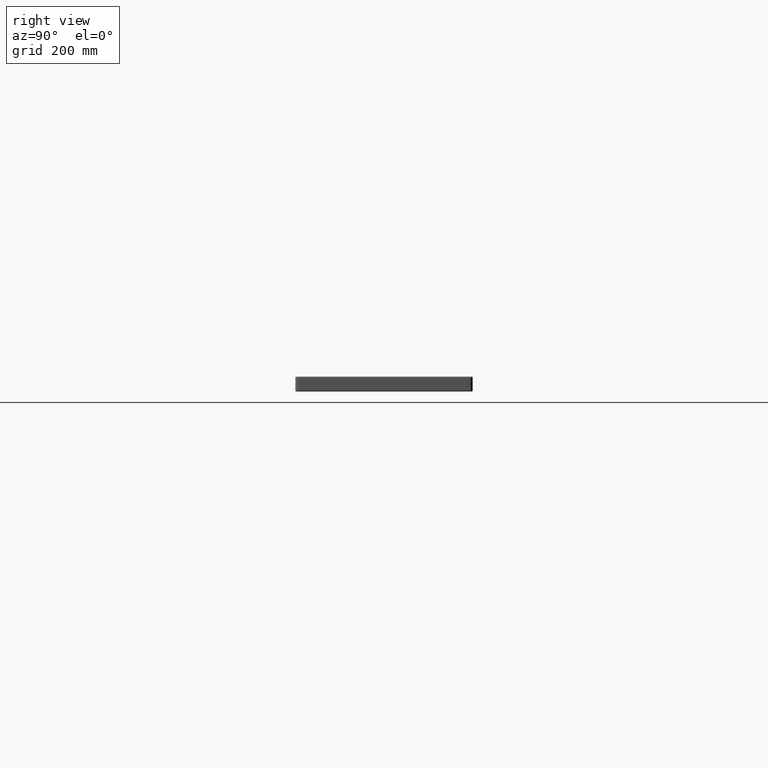
[diagram: clean part render]
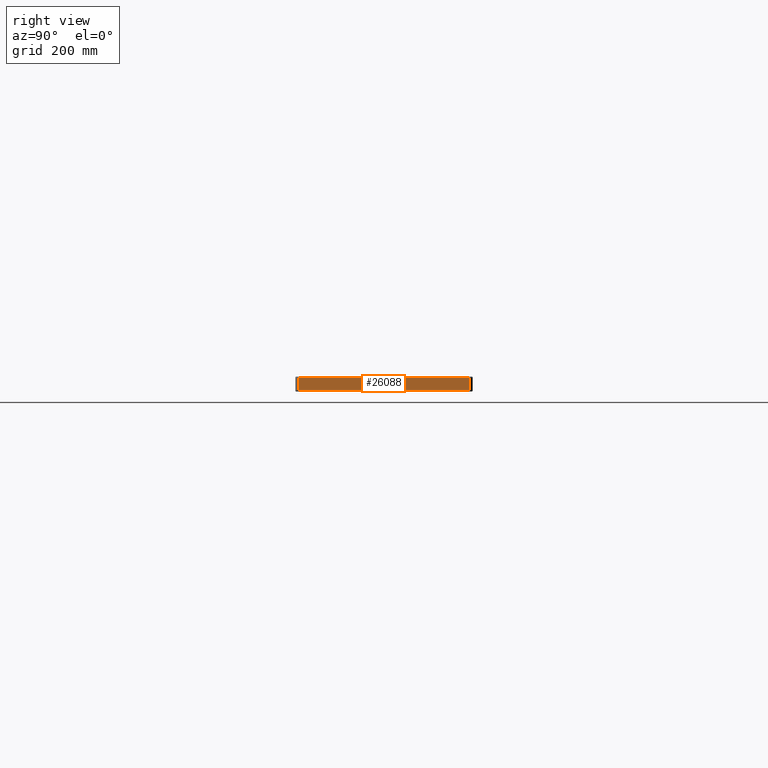
[diagram: same view with one face highlighted and labeled with its STEP entity id]
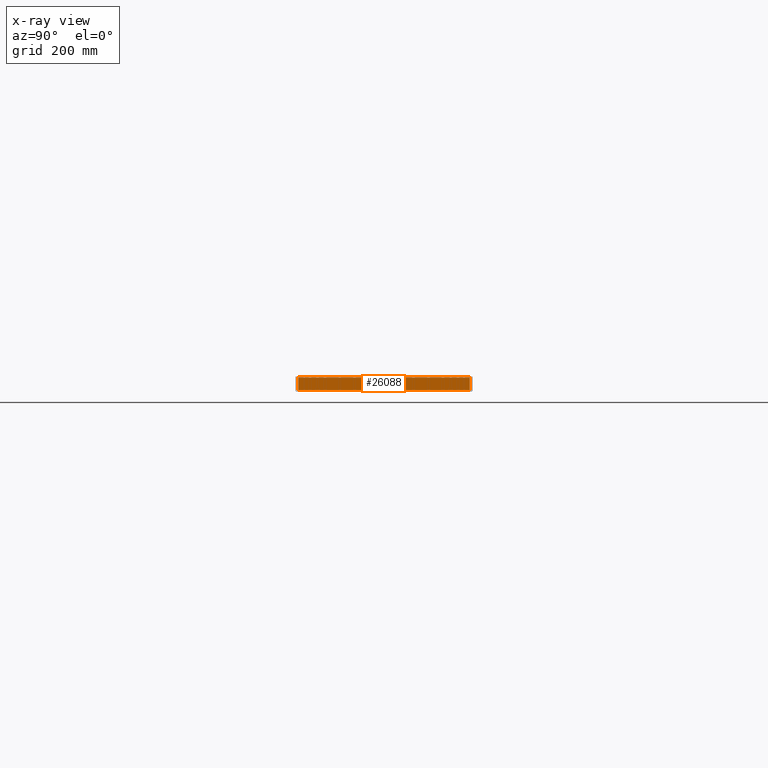
[diagram: x-ray of the same camera — body ghosted, the highlighted face saturated]
A machine part, right view. The second image highlights one B-rep face of the part: STEP entity #26088.
The next image is the same camera in x-ray: the body ghosted, the highlighted face saturated — about 0% of this face is hidden behind the body in this view.
In plain terms, the highlighted planar face has unit normal (1, 0, 0).
Its self-contained STEP definition (entity closure, byte-faithful):
#545 = CARTESIAN_POINT ( 'NONE',  ( 1200.000000000000000, 295.0000000000000000, -2.000000000000001800 ) ) ;
#1320 = DIRECTION ( 'NONE',  ( 0.0000000000000000000, -0.0000000000000000000, -1.000000000000000000 ) ) ;
#1708 = DIRECTION ( 'NONE',  ( 1.000000000000000000, 0.0000000000000000000, 0.0000000000000000000 ) ) ;
#3162 = VECTOR ( 'NONE', #6019, 1000.000000000000000 ) ;
#4530 = CARTESIAN_POINT ( 'NONE',  ( 1200.000000000000000, 0.0000000000000000000, -25.39999999999999900 ) ) ;
#6019 = DIRECTION ( 'NONE',  ( -0.0000000000000000000, -1.000000000000000000, 0.0000000000000000000 ) ) ;
#6916 = EDGE_CURVE ( 'NONE', #33662, #19570, #12828, .T. ) ;
#7779 = PLANE ( 'NONE',  #19959 ) ;
#10755 = CARTESIAN_POINT ( 'NONE',  ( 1200.000000000000000, 5.000000000000000000, -23.39999999999999900 ) ) ;
#11351 = VERTEX_POINT ( 'NONE', #10755 ) ;
#12828 = LINE ( 'NONE', #36570, #3162 ) ;
#14515 = EDGE_CURVE ( 'NONE', #36324, #33662, #28412, .T. ) ;
#15589 = EDGE_CURVE ( 'NONE', #19570, #11351, #25902, .T. ) ;
#19570 = VERTEX_POINT ( 'NONE', #32555 ) ;
#19785 = CARTESIAN_POINT ( 'NONE',  ( 1200.000000000000000, 5.000000000000000000, -25.39999999999999900 ) ) ;
#19959 = AXIS2_PLACEMENT_3D ( 'NONE', #4530, #1708, #29311 ) ;
#20291 = EDGE_LOOP ( 'NONE', ( #25456, #32067, #28045, #24142 ) ) ;
#20645 = VECTOR ( 'NONE', #1320, 1000.000000000000000 ) ;
#24142 = ORIENTED_EDGE ( 'NONE', *, *, #6916, .T. ) ;
#24561 = VECTOR ( 'NONE', #26428, 1000.000000000000000 ) ;
#25456 = ORIENTED_EDGE ( 'NONE', *, *, #15589, .T. ) ;
#25902 = LINE ( 'NONE', #19785, #20645 ) ;
#26088 = ADVANCED_FACE ( 'NONE', ( #37128 ), #7779, .T. ) ;
#26428 = DIRECTION ( 'NONE',  ( -0.0000000000000000000, 0.0000000000000000000, 1.000000000000000000 ) ) ;
#27845 = CARTESIAN_POINT ( 'NONE',  ( 1200.000000000000000, 295.0000000000000000, -23.39999999999999900 ) ) ;
#28045 = ORIENTED_EDGE ( 'NONE', *, *, #14515, .T. ) ;
#28373 = LINE ( 'NONE', #31570, #37058 ) ;
#28412 = LINE ( 'NONE', #32760, #24561 ) ;
#29311 = DIRECTION ( 'NONE',  ( 0.0000000000000000000, 0.0000000000000000000, -1.000000000000000000 ) ) ;
#31570 = CARTESIAN_POINT ( 'NONE',  ( 1200.000000000000000, 0.0000000000000000000, -23.39999999999999900 ) ) ;
#31889 = EDGE_CURVE ( 'NONE', #11351, #36324, #28373, .T. ) ;
#32067 = ORIENTED_EDGE ( 'NONE', *, *, #31889, .T. ) ;
#32555 = CARTESIAN_POINT ( 'NONE',  ( 1200.000000000000000, 5.000000000000000000, -2.000000000000001800 ) ) ;
#32760 = CARTESIAN_POINT ( 'NONE',  ( 1200.000000000000000, 295.0000000000000000, -25.39999999999999900 ) ) ;
#33662 = VERTEX_POINT ( 'NONE', #545 ) ;
#36324 = VERTEX_POINT ( 'NONE', #27845 ) ;
#36570 = CARTESIAN_POINT ( 'NONE',  ( 1200.000000000000000, 5.000000000000000000, -2.000000000000000000 ) ) ;
#37058 = VECTOR ( 'NONE', #37750, 1000.000000000000000 ) ;
#37128 = FACE_OUTER_BOUND ( 'NONE', #20291, .T. ) ;
#37750 = DIRECTION ( 'NONE',  ( -0.0000000000000000000, 1.000000000000000000, 0.0000000000000000000 ) ) ;